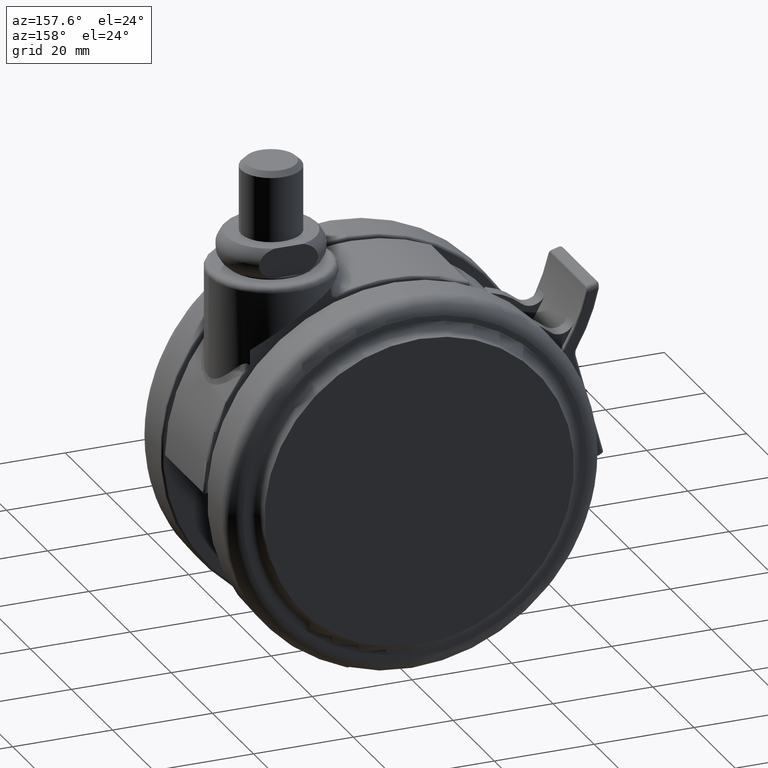
[diagram: clean part render]
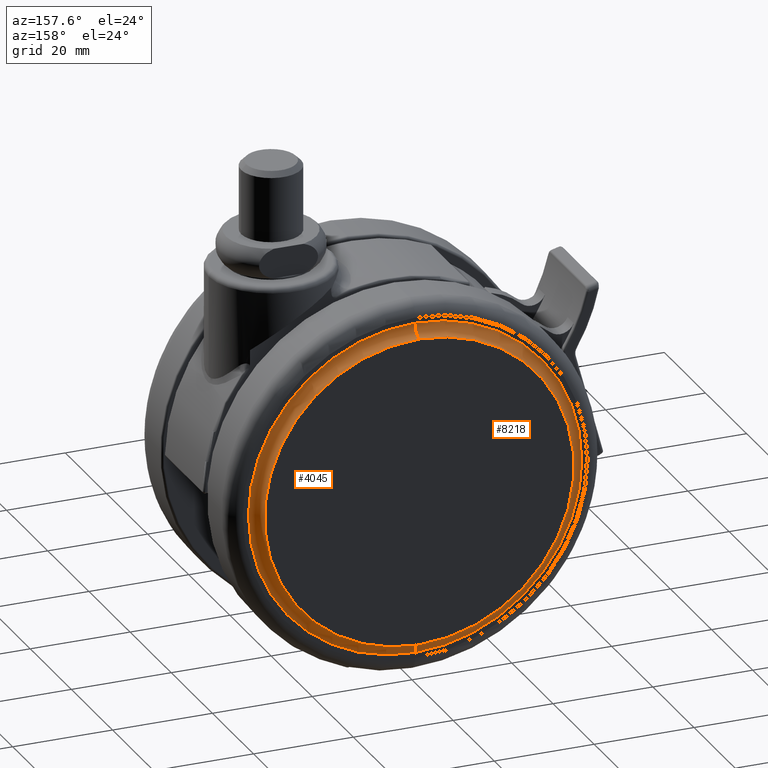
[diagram: same view with one multi-face feature highlighted, each face labeled with its STEP entity id]
A machine part, auxiliary view. The highlighted faces form ONE feature: a constant-radius fillet chain: 2 tangent blend faces with common blend radius 2.2 mm. The faces share edges in the B-rep.
Their STEP definitions:
[1] entity #4045 (Torus):
#56 = AXIS2_PLACEMENT_3D ( 'NONE', #7522, #3489, #8189 ) ;
#398 = CARTESIAN_POINT ( 'NONE',  ( -20.00000000000000000, 23.69163752878125400, -40.50000000000000000 ) ) ;
#653 = CARTESIAN_POINT ( 'NONE',  ( -20.00000000000000400, 21.50000000000000000, -73.88327505756353700 ) ) ;
#715 = CIRCLE ( 'NONE', #5911, 2.200000000000000600 ) ;
#790 = VERTEX_POINT ( 'NONE', #653 ) ;
#951 = EDGE_CURVE ( 'NONE', #790, #1814, #3336, .T. ) ;
#1087 = DIRECTION ( 'NONE',  ( 0.0000000000000000000, 0.0000000000000000000, -1.000000000000000000 ) ) ;
#1133 = CARTESIAN_POINT ( 'NONE',  ( -20.00000000000000000, 21.50000000000000000, -40.50000000000000000 ) ) ;
#1160 = DIRECTION ( 'NONE',  ( -1.505161159488250100E-015, -1.000000000000000000, 0.0000000000000000000 ) ) ;
#1716 = DIRECTION ( 'NONE',  ( -1.505161159488250100E-015, -1.000000000000000000, 0.0000000000000000000 ) ) ;
#1776 = CARTESIAN_POINT ( 'NONE',  ( -20.00000000000000000, 23.69163752878125400, -73.69163752878149900 ) ) ;
#1814 = VERTEX_POINT ( 'NONE', #8609 ) ;
#1843 = AXIS2_PLACEMENT_3D ( 'NONE', #398, #7821, #5730 ) ;
#2052 = VERTEX_POINT ( 'NONE', #2486 ) ;
#2473 = DIRECTION ( 'NONE',  ( 1.577021341797096800E-015, 1.000000000000000000, 0.0000000000000000000 ) ) ;
#2486 = CARTESIAN_POINT ( 'NONE',  ( -20.00000000000000000, 23.50000000000000000, -71.50000000000001400 ) ) ;
#3198 = ORIENTED_EDGE ( 'NONE', *, *, #6947, .T. ) ;
#3336 = CIRCLE ( 'NONE', #4170, 33.38327505756375800 ) ;
#3489 = DIRECTION ( 'NONE',  ( -1.000000000000000000, 1.505161159488250100E-015, -1.224646799147353200E-016 ) ) ;
#4045 = ADVANCED_FACE ( 'NONE', ( #7605 ), #6981, .F. ) ;
#4131 = AXIS2_PLACEMENT_3D ( 'NONE', #5784, #1716, #6456 ) ;
#4170 = AXIS2_PLACEMENT_3D ( 'NONE', #1133, #1160, #1087 ) ;
#4345 = EDGE_CURVE ( 'NONE', #6777, #1814, #6662, .T. ) ;
#5293 = CIRCLE ( 'NONE', #4131, 31.00000000000000700 ) ;
#5549 = ORIENTED_EDGE ( 'NONE', *, *, #7569, .F. ) ;
#5730 = DIRECTION ( 'NONE',  ( 0.0000000000000000000, 0.0000000000000000000, -1.000000000000000000 ) ) ;
#5784 = CARTESIAN_POINT ( 'NONE',  ( -20.00000000000000000, 23.50000000000000000, -40.50000000000000000 ) ) ;
#5911 = AXIS2_PLACEMENT_3D ( 'NONE', #1776, #6532, #2473 ) ;
#6153 = ORIENTED_EDGE ( 'NONE', *, *, #4345, .T. ) ;
#6456 = DIRECTION ( 'NONE',  ( 0.0000000000000000000, 0.0000000000000000000, -1.000000000000000000 ) ) ;
#6532 = DIRECTION ( 'NONE',  ( 1.000000000000000000, -1.505161159488250100E-015, 0.0000000000000000000 ) ) ;
#6662 = CIRCLE ( 'NONE', #56, 2.200000000000000600 ) ;
#6757 = CARTESIAN_POINT ( 'NONE',  ( -20.00000000000000400, 23.50000000000000000, -9.500000000000001800 ) ) ;
#6777 = VERTEX_POINT ( 'NONE', #6757 ) ;
#6947 = EDGE_CURVE ( 'NONE', #2052, #6777, #5293, .T. ) ;
#6981 = TOROIDAL_SURFACE ( 'NONE', #1843, 33.19163752878149900, 2.200000000000000200 ) ;
#7522 = CARTESIAN_POINT ( 'NONE',  ( -20.00000000000000400, 23.69163752878125400, -7.308362471218500500 ) ) ;
#7569 = EDGE_CURVE ( 'NONE', #2052, #790, #715, .T. ) ;
#7605 = FACE_OUTER_BOUND ( 'NONE', #8370, .T. ) ;
#7659 = ORIENTED_EDGE ( 'NONE', *, *, #951, .F. ) ;
#7821 = DIRECTION ( 'NONE',  ( 1.505161159488250100E-015, 1.000000000000000000, 0.0000000000000000000 ) ) ;
#8189 = DIRECTION ( 'NONE',  ( -1.577021341797096800E-015, -1.000000000000000000, 0.0000000000000000000 ) ) ;
#8370 = EDGE_LOOP ( 'NONE', ( #3198, #6153, #7659, #5549 ) ) ;
#8609 = CARTESIAN_POINT ( 'NONE',  ( -20.00000000000000700, 21.50000000000000000, -7.116724942436476900 ) ) ;
[2] entity #8218 (Torus):
#56 = AXIS2_PLACEMENT_3D ( 'NONE', #7522, #3489, #8189 ) ;
#399 = EDGE_LOOP ( 'NONE', ( #6036, #3740, #5810, #2375 ) ) ;
#653 = CARTESIAN_POINT ( 'NONE',  ( -20.00000000000000400, 21.50000000000000000, -73.88327505756353700 ) ) ;
#715 = CIRCLE ( 'NONE', #5911, 2.200000000000000600 ) ;
#790 = VERTEX_POINT ( 'NONE', #653 ) ;
#868 = CIRCLE ( 'NONE', #3325, 33.38327505756375800 ) ;
#1673 = CARTESIAN_POINT ( 'NONE',  ( -20.00000000000000000, 21.50000000000000000, -40.50000000000000000 ) ) ;
#1776 = CARTESIAN_POINT ( 'NONE',  ( -20.00000000000000000, 23.69163752878125400, -73.69163752878149900 ) ) ;
#1787 = DIRECTION ( 'NONE',  ( -1.505161159488250100E-015, -1.000000000000000000, 0.0000000000000000000 ) ) ;
#1814 = VERTEX_POINT ( 'NONE', #8609 ) ;
#2052 = VERTEX_POINT ( 'NONE', #2486 ) ;
#2187 = EDGE_CURVE ( 'NONE', #1814, #790, #868, .T. ) ;
#2370 = DIRECTION ( 'NONE',  ( 0.0000000000000000000, 0.0000000000000000000, -1.000000000000000000 ) ) ;
#2375 = ORIENTED_EDGE ( 'NONE', *, *, #2187, .F. ) ;
#2473 = DIRECTION ( 'NONE',  ( 1.577021341797096800E-015, 1.000000000000000000, 0.0000000000000000000 ) ) ;
#2486 = CARTESIAN_POINT ( 'NONE',  ( -20.00000000000000000, 23.50000000000000000, -71.50000000000001400 ) ) ;
#2612 = FACE_OUTER_BOUND ( 'NONE', #399, .T. ) ;
#2676 = AXIS2_PLACEMENT_3D ( 'NONE', #8724, #6085, #3383 ) ;
#3325 = AXIS2_PLACEMENT_3D ( 'NONE', #1673, #6432, #2370 ) ;
#3383 = DIRECTION ( 'NONE',  ( 0.0000000000000000000, 0.0000000000000000000, -1.000000000000000000 ) ) ;
#3489 = DIRECTION ( 'NONE',  ( -1.000000000000000000, 1.505161159488250100E-015, -1.224646799147353200E-016 ) ) ;
#3740 = ORIENTED_EDGE ( 'NONE', *, *, #7047, .T. ) ;
#4345 = EDGE_CURVE ( 'NONE', #6777, #1814, #6662, .T. ) ;
#5810 = ORIENTED_EDGE ( 'NONE', *, *, #7569, .T. ) ;
#5868 = CARTESIAN_POINT ( 'NONE',  ( -20.00000000000000000, 23.50000000000000000, -40.50000000000000000 ) ) ;
#5870 = TOROIDAL_SURFACE ( 'NONE', #2676, 33.19163752878149900, 2.200000000000000200 ) ;
#5911 = AXIS2_PLACEMENT_3D ( 'NONE', #1776, #6532, #2473 ) ;
#6036 = ORIENTED_EDGE ( 'NONE', *, *, #4345, .F. ) ;
#6085 = DIRECTION ( 'NONE',  ( 1.505161159488250100E-015, 1.000000000000000000, 0.0000000000000000000 ) ) ;
#6432 = DIRECTION ( 'NONE',  ( -1.505161159488250100E-015, -1.000000000000000000, 0.0000000000000000000 ) ) ;
#6532 = DIRECTION ( 'NONE',  ( 1.000000000000000000, -1.505161159488250100E-015, 0.0000000000000000000 ) ) ;
#6543 = DIRECTION ( 'NONE',  ( 0.0000000000000000000, 0.0000000000000000000, -1.000000000000000000 ) ) ;
#6662 = CIRCLE ( 'NONE', #56, 2.200000000000000600 ) ;
#6757 = CARTESIAN_POINT ( 'NONE',  ( -20.00000000000000400, 23.50000000000000000, -9.500000000000001800 ) ) ;
#6777 = VERTEX_POINT ( 'NONE', #6757 ) ;
#7047 = EDGE_CURVE ( 'NONE', #6777, #2052, #8431, .T. ) ;
#7522 = CARTESIAN_POINT ( 'NONE',  ( -20.00000000000000400, 23.69163752878125400, -7.308362471218500500 ) ) ;
#7569 = EDGE_CURVE ( 'NONE', #2052, #790, #715, .T. ) ;
#7756 = AXIS2_PLACEMENT_3D ( 'NONE', #5868, #1787, #6543 ) ;
#8189 = DIRECTION ( 'NONE',  ( -1.577021341797096800E-015, -1.000000000000000000, 0.0000000000000000000 ) ) ;
#8218 = ADVANCED_FACE ( 'NONE', ( #2612 ), #5870, .F. ) ;
#8431 = CIRCLE ( 'NONE', #7756, 31.00000000000000700 ) ;
#8609 = CARTESIAN_POINT ( 'NONE',  ( -20.00000000000000700, 21.50000000000000000, -7.116724942436476900 ) ) ;
#8724 = CARTESIAN_POINT ( 'NONE',  ( -20.00000000000000000, 23.69163752878125400, -40.50000000000000000 ) ) ;